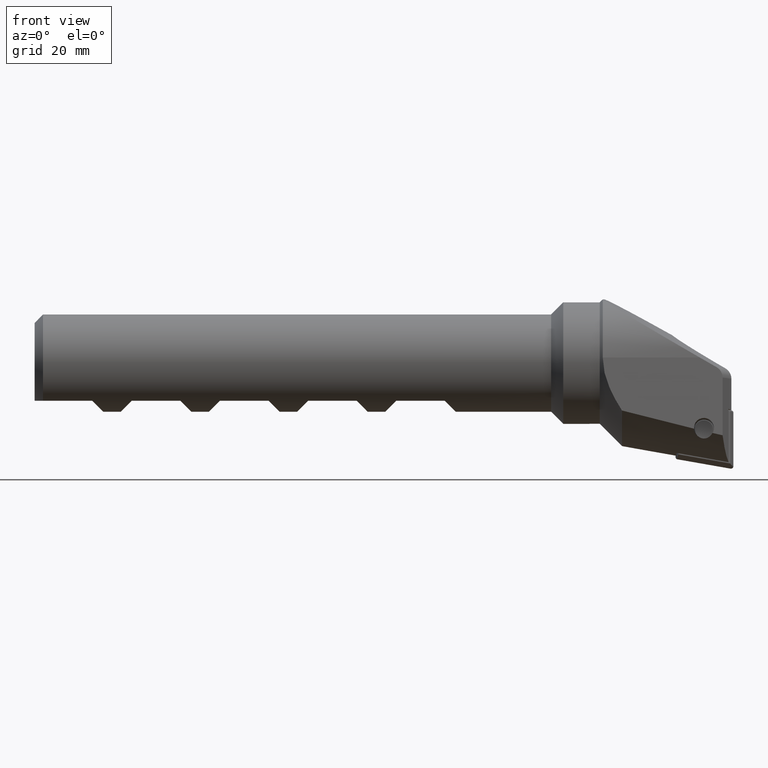
[diagram: clean part render]
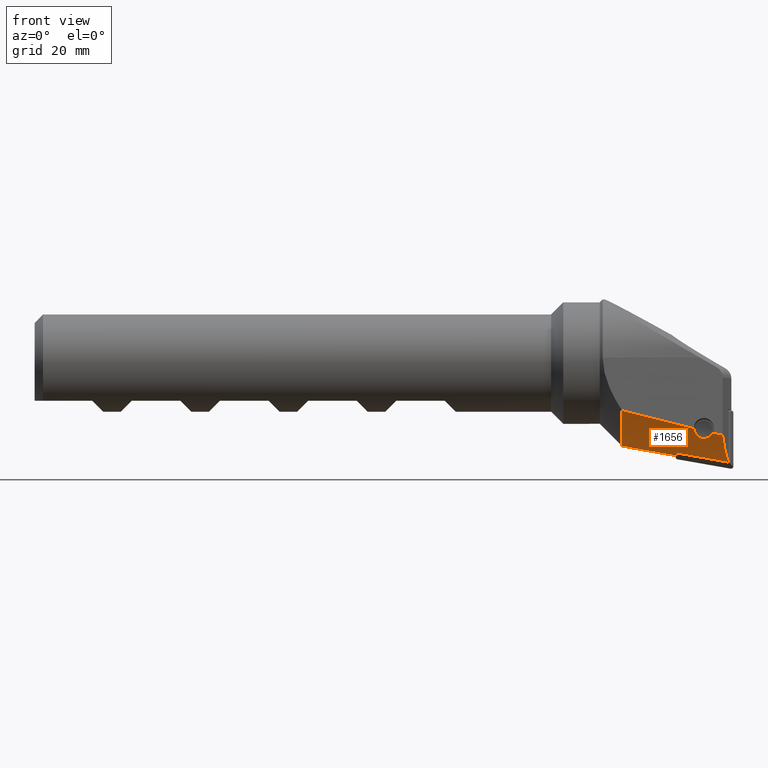
[diagram: same view with one face highlighted and labeled with its STEP entity id]
A machine part, front view. The second image highlights one B-rep face of the part: STEP entity #1656.
In plain terms, the highlighted conical surface has half-angle 10 deg.
Its self-contained STEP definition (entity closure, byte-faithful):
#8 = ORIENTED_EDGE ( 'NONE', *, *, #1358, .T. ) ;
#49 = VERTEX_POINT ( 'NONE', #529 ) ;
#56 = EDGE_CURVE ( 'NONE', #2781, #3100, #3642, .T. ) ;
#95 = VERTEX_POINT ( 'NONE', #1470 ) ;
#97 = CARTESIAN_POINT ( 'NONE',  ( 108.6597703430201700, -10.89629208874747600, -11.41879556065939000 ) ) ;
#102 = CARTESIAN_POINT ( 'NONE',  ( 112.1215519977282800, -11.55720044930532000, -11.62541652952316100 ) ) ;
#110 = CARTESIAN_POINT ( 'NONE',  ( 113.2248256399097800, -11.57916682800994000, -11.87649338701923800 ) ) ;
#139 = CARTESIAN_POINT ( 'NONE',  ( 109.0631243260377100, -10.36700935102391500, -11.99400398043737300 ) ) ;
#163 = CONICAL_SURFACE ( 'NONE', #3277, 16.89999999999999900, 0.1745329251994337200 ) ;
#166 = CARTESIAN_POINT ( 'NONE',  ( 105.6554933045272700, -3.758308412310280100, -14.78202013730512100 ) ) ;
#205 = VERTEX_POINT ( 'NONE', #338 ) ;
#238 = CARTESIAN_POINT ( 'NONE',  ( 105.5513766796698300, -0.4370655594401300400, -15.23359497799145000 ) ) ;
#338 = CARTESIAN_POINT ( 'NONE',  ( 96.66748254909700200, -11.22259521698506100, -7.800861223324983700 ) ) ;
#371 = CARTESIAN_POINT ( 'NONE',  ( 96.66748254909700200, -11.22259521698506100, -7.800861223324983700 ) ) ;
#383 = CARTESIAN_POINT ( 'NONE',  ( 108.5110283411304400, -11.48387704910914300, -10.78732623026459200 ) ) ;
#388 = CARTESIAN_POINT ( 'NONE',  ( 100.9897600183101400, 0.05693350891960080600, -14.42950436613777200 ) ) ;
#399 = CARTESIAN_POINT ( 'NONE',  ( 114.2125452932154800, -3.891391475091116300, -16.30316650550175300 ) ) ;
#403 = CARTESIAN_POINT ( 'NONE',  ( 113.2248256399097800, -11.57916682800994000, -11.87649338701923800 ) ) ;
#410 = DIRECTION ( 'NONE',  ( 0.0000000000000000000, 0.0000000000000000000, -1.000000000000000000 ) ) ;
#438 = ORIENTED_EDGE ( 'NONE', *, *, #2017, .F. ) ;
#447 = CARTESIAN_POINT ( 'NONE',  ( 111.4963665331121800, -11.39131515584925400, -11.63576485551390700 ) ) ;
#529 = CARTESIAN_POINT ( 'NONE',  ( 96.66748254909700200, 0.6957842048460460800, -13.64976056823555200 ) ) ;
#533 = DIRECTION ( 'NONE',  ( 0.0000000000000000000, -1.000000000000000000, 0.0000000000000000000 ) ) ;
#551 = CARTESIAN_POINT ( 'NONE',  ( 96.66748254909700200, 0.6957842048460460800, -13.64976056823555200 ) ) ;
#591 = CARTESIAN_POINT ( 'NONE',  ( 105.6554933045272700, -1.285158571919103400, -15.19807122324274600 ) ) ;
#621 = CARTESIAN_POINT ( 'NONE',  ( 114.2125452932154800, -3.891391475091116300, -16.30316650550175300 ) ) ;
#642 = ORIENTED_EDGE ( 'NONE', *, *, #2768, .F. ) ;
#688 = CARTESIAN_POINT ( 'NONE',  ( 108.9368091546455600, -10.48751331138515000, -11.85906349341226500 ) ) ;
#746 = CARTESIAN_POINT ( 'NONE',  ( 110.2192938039612100, -10.17069116296165300, -12.42521034851006700 ) ) ;
#951 = CARTESIAN_POINT ( 'NONE',  ( 108.5110283411304400, -11.48387704910914300, -10.78732623026459200 ) ) ;
#999 = CARTESIAN_POINT ( 'NONE',  ( 111.5701890319276300, -11.54612021997727900, -11.49876892877708200 ) ) ;
#1009 = CARTESIAN_POINT ( 'NONE',  ( 110.0052942642166000, -10.11157113531661400, -12.42475654791489600 ) ) ;
#1015 = B_SPLINE_CURVE_WITH_KNOTS ( 'NONE', 3,
 ( #1276, #447, #1922, #3115, #3752, #3105, #3432, #1953, #746, #1009, #2236, #2564, #2838, #1627, #1363, #1345, #139, #688, #2862, #3158, #97, #1053, #3456, #383 ),
 .UNSPECIFIED., .F., .F.,
 ( 4, 2, 2, 2, 2, 2, 2, 2, 2, 2, 2, 4 ),
 ( 0.004695751178763121200, 0.005357812782383490500, 0.006019874386003859700, 0.006681935989624228900, 0.007012966791434411700, 0.007343997593244595500, 0.007675028395054779200, 0.008006059196864963000, 0.008337089998675146700, 0.008668120800485328700, 0.009330182404105696200, 0.009992244007726063700 ),
 .UNSPECIFIED. ) ;
#1033 = B_SPLINE_CURVE_WITH_KNOTS ( 'NONE', 3,
 ( #621, #1232, #2304, #166 ),
 .UNSPECIFIED., .F., .F.,
 ( 4, 4 ),
 ( 0.0003120026529475233300, 0.009004225389899322300 ),
 .UNSPECIFIED. ) ;
#1040 = AXIS2_PLACEMENT_3D ( 'NONE', #3224, #2047, #1206 ) ;
#1045 = CARTESIAN_POINT ( 'NONE',  ( 100.9897600183101400, 0.05693350891960080600, -14.42950436613777200 ) ) ;
#1053 = CARTESIAN_POINT ( 'NONE',  ( 108.5550459638109400, -11.18661802507420900, -11.10833638999762100 ) ) ;
#1062 = B_SPLINE_CURVE_WITH_KNOTS ( 'NONE', 3,
 ( #999, #102, #1630, #403 ),
 .UNSPECIFIED., .F., .F.,
 ( 4, 4 ),
 ( 0.01535819575763566600, 0.01705550566628533500 ),
 .UNSPECIFIED. ) ;
#1141 = B_SPLINE_CURVE_WITH_KNOTS ( 'NONE', 3,
 ( #1045, #3511, #1267, #3446 ),
 .UNSPECIFIED., .F., .F.,
 ( 4, 4 ),
 ( 0.004389743352530228700, 0.008969658302029484900 ),
 .UNSPECIFIED. ) ;
#1144 = ORIENTED_EDGE ( 'NONE', *, *, #2898, .F. ) ;
#1151 = CARTESIAN_POINT ( 'NONE',  ( 105.6554933045272700, -1.285158571919103400, -15.19807122324274600 ) ) ;
#1170 = CARTESIAN_POINT ( 'NONE',  ( 99.53352800824733000, 0.1255736597640885700, -14.17269266245760800 ) ) ;
#1172 = ORIENTED_EDGE ( 'NONE', *, *, #1541, .T. ) ;
#1206 = DIRECTION ( 'NONE',  ( 0.0000000000000000000, 0.0000000000000000000, 1.000000000000000000 ) ) ;
#1232 = CARTESIAN_POINT ( 'NONE',  ( 111.3600990630951100, -3.847077156469178600, -15.79665152589177300 ) ) ;
#1267 = CARTESIAN_POINT ( 'NONE',  ( 103.9962818294598900, 0.01054201950984096400, -14.95976151649438400 ) ) ;
#1276 = CARTESIAN_POINT ( 'NONE',  ( 111.5701890319276300, -11.54612021997727900, -11.49876892877708200 ) ) ;
#1316 = CARTESIAN_POINT ( 'NONE',  ( 106.5294760315513400, -11.44303304475060500, -10.32047712419223000 ) ) ;
#1317 = ORIENTED_EDGE ( 'NONE', *, *, #3514, .T. ) ;
#1330 = EDGE_CURVE ( 'NONE', #2074, #2781, #1141, .T. ) ;
#1345 = CARTESIAN_POINT ( 'NONE',  ( 109.1346422043981800, -10.31031393474123800, -12.05927346776725500 ) ) ;
#1358 = EDGE_CURVE ( 'NONE', #3100, #3199, #2258, .T. ) ;
#1363 = CARTESIAN_POINT ( 'NONE',  ( 109.2928111940840500, -10.21308869665647200, -12.17814530784662900 ) ) ;
#1444 = CARTESIAN_POINT ( 'NONE',  ( 98.09207476959208800, 0.3357327360503243300, -13.91503968394591000 ) ) ;
#1470 = CARTESIAN_POINT ( 'NONE',  ( 111.5701890319276300, -11.54612021997727900, -11.49876892877708200 ) ) ;
#1541 = EDGE_CURVE ( 'NONE', #3568, #3339, #1568, .T. ) ;
#1568 =( BOUNDED_CURVE ( )  B_SPLINE_CURVE ( 3, ( #1878, #1867, #1854, #3692 ),
 .UNSPECIFIED., .F., .F. ) 
 B_SPLINE_CURVE_WITH_KNOTS ( ( 4, 4 ),
 ( 1.739219549195090100, 2.272900179906941700 ),
 .UNSPECIFIED. ) 
 CURVE ( )  GEOMETRIC_REPRESENTATION_ITEM ( )  RATIONAL_B_SPLINE_CURVE ( ( 1.000000000000000000, 0.9764059141581272700, 0.9764059141581272700, 1.000000000000000000 ) ) 
 REPRESENTATION_ITEM ( '' )  );
#1627 = CARTESIAN_POINT ( 'NONE',  ( 109.3812378295886700, -10.17148043631850000, -12.23308059829714400 ) ) ;
#1630 = CARTESIAN_POINT ( 'NONE',  ( 112.6731028092023900, -11.56821411596229300, -11.75130331545756100 ) ) ;
#1656 = ADVANCED_FACE ( 'NONE', ( #2439 ), #163, .T. ) ;
#1835 = CARTESIAN_POINT ( 'NONE',  ( 105.6554933045272700, -3.758308412310280100, -14.78202013730512100 ) ) ;
#1854 = CARTESIAN_POINT ( 'NONE',  ( 113.5087422393462300, -9.446084544392670400, -14.02609219741983000 ) ) ;
#1867 = CARTESIAN_POINT ( 'NONE',  ( 113.8459379482836500, -6.821569732317014400, -15.53730560238275300 ) ) ;
#1878 = CARTESIAN_POINT ( 'NONE',  ( 114.2125452932154800, -3.891391475091116300, -16.30316650550175300 ) ) ;
#1922 = CARTESIAN_POINT ( 'NONE',  ( 111.4070497185659700, -11.23681782859355700, -11.76302079522013400 ) ) ;
#1953 = CARTESIAN_POINT ( 'NONE',  ( 110.3215272729997600, -10.21314769593231900, -12.41377693129077100 ) ) ;
#1962 = CARTESIAN_POINT ( 'NONE',  ( 115.0000000000000000, 0.0000000000000000000, 0.0000000000000000000 ) ) ;
#2009 = DIRECTION ( 'NONE',  ( -1.000000000000000000, -9.772874859926101600E-033, 8.550157603010379200E-034 ) ) ;
#2017 = EDGE_CURVE ( 'NONE', #95, #3339, #1062, .T. ) ;
#2038 = ORIENTED_EDGE ( 'NONE', *, *, #3292, .T. ) ;
#2047 = DIRECTION ( 'NONE',  ( -1.000000000000000000, -0.0000000000000000000, -0.0000000000000000000 ) ) ;
#2068 = CARTESIAN_POINT ( 'NONE',  ( 100.2593392342943600, 0.06820540561369910200, -14.30066599737281400 ) ) ;
#2074 = VERTEX_POINT ( 'NONE', #388 ) ;
#2114 = ORIENTED_EDGE ( 'NONE', *, *, #3633, .F. ) ;
#2222 = CARTESIAN_POINT ( 'NONE',  ( 104.5507596186072300, -11.40118414711237800, -9.842142035374426000 ) ) ;
#2236 = CARTESIAN_POINT ( 'NONE',  ( 109.8950568427396900, -10.09582296056360600, -12.41249999367328800 ) ) ;
#2258 = CIRCLE ( 'NONE', #3207, 15.25231134817724800 ) ;
#2304 = CARTESIAN_POINT ( 'NONE',  ( 108.5077385971255000, -3.802720867425279500, -15.28965682216361300 ) ) ;
#2364 = CARTESIAN_POINT ( 'NONE',  ( 105.6033856397287800, -0.8614823091750186700, -15.22467677952160200 ) ) ;
#2372 = ORIENTED_EDGE ( 'NONE', *, *, #1330, .T. ) ;
#2439 = FACE_OUTER_BOUND ( 'NONE', #3065, .T. ) ;
#2564 = CARTESIAN_POINT ( 'NONE',  ( 109.6799079546120600, -10.09647443368559600, -12.36302881075345200 ) ) ;
#2648 = CARTESIAN_POINT ( 'NONE',  ( 97.37638286913525600, 0.4882809633164045800, -13.78549840121464800 ) ) ;
#2709 = CARTESIAN_POINT ( 'NONE',  ( 105.4995569121805500, -0.01264674453100331000, -15.22481030231765000 ) ) ;
#2768 = EDGE_CURVE ( 'NONE', #49, #205, #3275, .T. ) ;
#2781 = VERTEX_POINT ( 'NONE', #2709 ) ;
#2801 = CARTESIAN_POINT ( 'NONE',  ( 98.63125704616248900, -11.26973874725075400, -8.339714239998624400 ) ) ;
#2827 = VERTEX_POINT ( 'NONE', #3078 ) ;
#2838 = CARTESIAN_POINT ( 'NONE',  ( 109.5743989538483000, -10.11302461111651300, -12.32553820118375600 ) ) ;
#2862 = CARTESIAN_POINT ( 'NONE',  ( 108.8814557517216600, -10.55156239377178200, -11.78908199415505500 ) ) ;
#2898 = EDGE_CURVE ( 'NONE', #3568, #3199, #1033, .T. ) ;
#3065 = EDGE_LOOP ( 'NONE', ( #2114, #642, #1317, #2372, #3316, #8, #1144, #1172, #438, #2038 ) ) ;
#3078 = CARTESIAN_POINT ( 'NONE',  ( 108.5110283411304400, -11.48387704910914300, -10.78732623026459200 ) ) ;
#3100 = VERTEX_POINT ( 'NONE', #1151 ) ;
#3105 = CARTESIAN_POINT ( 'NONE',  ( 110.7778698360066300, -10.49813811397642400, -12.28076060272596100 ) ) ;
#3109 = B_SPLINE_CURVE_WITH_KNOTS ( 'NONE', 3,
 ( #551, #2648, #1444, #1170, #2068, #3569 ),
 .UNSPECIFIED., .F., .F.,
 ( 4, 2, 4 ),
 ( 2.084992833681929800E-007, 0.002217284586257433100, 0.004434360673231497500 ),
 .UNSPECIFIED. ) ;
#3115 = CARTESIAN_POINT ( 'NONE',  ( 111.1924865156846900, -10.93040082688631500, -11.99715277414743800 ) ) ;
#3158 = CARTESIAN_POINT ( 'NONE',  ( 108.7337313639512500, -10.75179285480097700, -11.57247244648166700 ) ) ;
#3199 = VERTEX_POINT ( 'NONE', #1835 ) ;
#3207 = AXIS2_PLACEMENT_3D ( 'NONE', #3797, #2009, #533 ) ;
#3222 = CARTESIAN_POINT ( 'NONE',  ( 105.4995569121805500, -0.01264674453100331000, -15.22481030231765000 ) ) ;
#3224 = CARTESIAN_POINT ( 'NONE',  ( 96.66748254909700200, 0.0000000000000000000, 0.0000000000000000000 ) ) ;
#3275 = CIRCLE ( 'NONE', #1040, 13.66748254909701300 ) ;
#3277 = AXIS2_PLACEMENT_3D ( 'NONE', #1962, #3747, #410 ) ;
#3292 = EDGE_CURVE ( 'NONE', #95, #2827, #1015, .T. ) ;
#3316 = ORIENTED_EDGE ( 'NONE', *, *, #56, .T. ) ;
#3331 = B_SPLINE_CURVE_WITH_KNOTS ( 'NONE', 3,
 ( #371, #2801, #3668, #2222, #1316, #951 ),
 .UNSPECIFIED., .F., .F.,
 ( 4, 2, 4 ),
 ( 2.073692707640276200E-007, 0.006108603930116660600, 0.01221700049096255700 ),
 .UNSPECIFIED. ) ;
#3339 = VERTEX_POINT ( 'NONE', #110 ) ;
#3432 = CARTESIAN_POINT ( 'NONE',  ( 110.6117552577280900, -10.36630704393306800, -12.35337953896965100 ) ) ;
#3446 = CARTESIAN_POINT ( 'NONE',  ( 105.4995569121805500, -0.01264674453100331000, -15.22481030231765000 ) ) ;
#3456 = CARTESIAN_POINT ( 'NONE',  ( 108.5232406125892600, -11.33430669315753800, -10.94969968411300000 ) ) ;
#3511 = CARTESIAN_POINT ( 'NONE',  ( 102.4930156711413500, 0.03373517886882853500, -14.69466249195484400 ) ) ;
#3514 = EDGE_CURVE ( 'NONE', #49, #2074, #3109, .T. ) ;
#3568 = VERTEX_POINT ( 'NONE', #399 ) ;
#3569 = CARTESIAN_POINT ( 'NONE',  ( 100.9897600183101400, 0.05693350891960080600, -14.42950436613777200 ) ) ;
#3633 = EDGE_CURVE ( 'NONE', #205, #2827, #3331, .T. ) ;
#3642 =( BOUNDED_CURVE ( )  B_SPLINE_CURVE ( 3, ( #3222, #238, #2364, #591 ),
 .UNSPECIFIED., .F., .T. ) 
 B_SPLINE_CURVE_WITH_KNOTS ( ( 4, 4 ),
 ( 4.604402227945223900, 4.687831314084870200 ),
 .UNSPECIFIED. ) 
 CURVE ( )  GEOMETRIC_REPRESENTATION_ITEM ( )  RATIONAL_B_SPLINE_CURVE ( ( 1.000000000000000000, 0.9994200497372470700, 0.9994200497372470700, 1.000000000000000000 ) ) 
 REPRESENTATION_ITEM ( '' )  );
#3668 = CARTESIAN_POINT ( 'NONE',  ( 100.6016844503533200, -11.31452483557797000, -8.851621572014799700 ) ) ;
#3692 = CARTESIAN_POINT ( 'NONE',  ( 113.2248256399097800, -11.57916682800994000, -11.87649338701923800 ) ) ;
#3747 = DIRECTION ( 'NONE',  ( 1.000000000000000000, 0.0000000000000000000, 0.0000000000000000000 ) ) ;
#3752 = CARTESIAN_POINT ( 'NONE',  ( 111.0679279624460500, -10.77943471567736500, -12.10317887398119700 ) ) ;
#3797 = CARTESIAN_POINT ( 'NONE',  ( 105.6554933045272700, -2.603467045479820800E-032, 7.989700496867762900E-033 ) ) ;